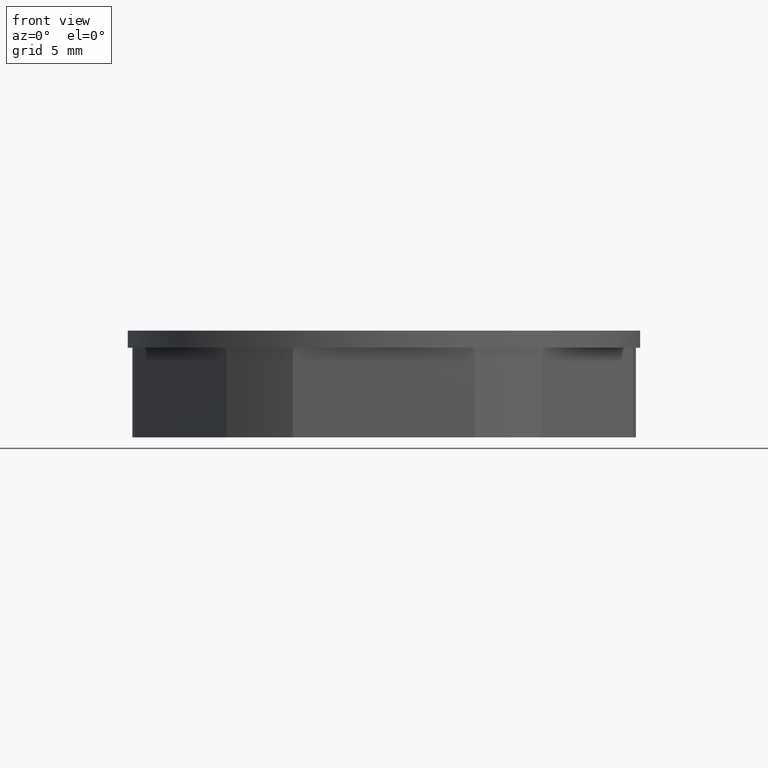
[diagram: clean part render]
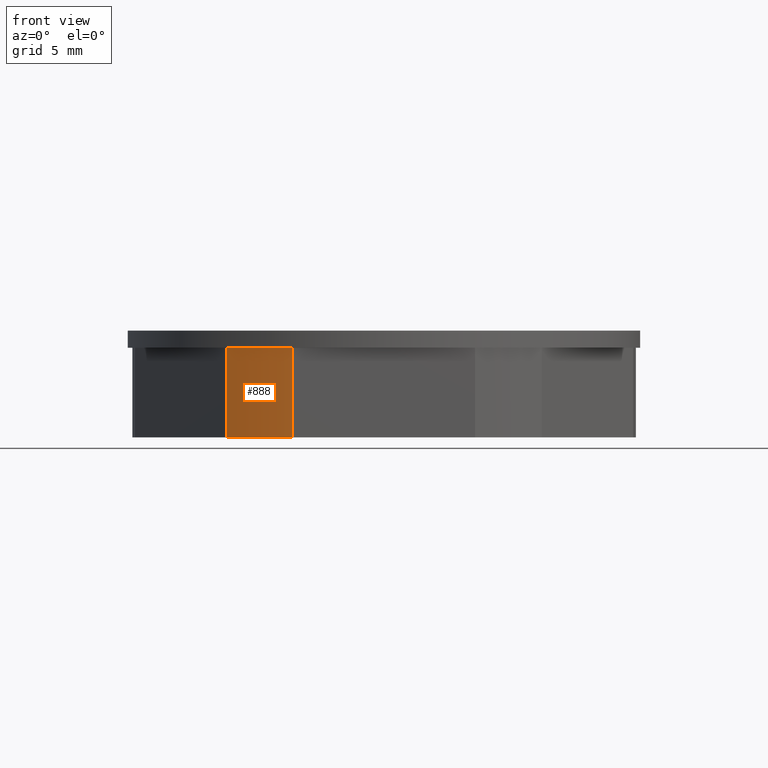
[diagram: same view with one face highlighted and labeled with its STEP entity id]
A machine part, front view. The second image highlights one B-rep face of the part: STEP entity #888.
In plain terms, the highlighted cylindrical surface (partial cylindrical patch) has radius 11.8 mm, axis along (0, 0, 1).
Its self-contained STEP definition (entity closure, byte-faithful):
#259 = LINE ( 'NONE', #285, #1350 ) ;
#279 = DIRECTION ( 'NONE',  ( -0.0000000000000000000, -0.0000000000000000000, -1.000000000000000000 ) ) ;
#285 = CARTESIAN_POINT ( 'NONE',  ( -7.390863791222585600, -9.198648401781373000, 0.0000000000000000000 ) ) ;
#326 = DIRECTION ( 'NONE',  ( -0.0000000000000000000, -0.0000000000000000000, -1.000000000000000000 ) ) ;
#328 = CARTESIAN_POINT ( 'NONE',  ( 0.0000000000000000000, 0.0000000000000000000, 4.200000000000000200 ) ) ;
#329 = DIRECTION ( 'NONE',  ( 1.000000000000000000, -8.881784197001252300E-016, 0.0000000000000000000 ) ) ;
#450 = CARTESIAN_POINT ( 'NONE',  ( 0.0000000000000000000, 0.0000000000000000000, 0.0000000000000000000 ) ) ;
#454 = LINE ( 'NONE', #456, #1274 ) ;
#456 = CARTESIAN_POINT ( 'NONE',  ( -4.270831300812481000, -11.00000000000002000, 0.0000000000000000000 ) ) ;
#464 = DIRECTION ( 'NONE',  ( 1.000000000000000000, 0.0000000000000000000, 0.0000000000000000000 ) ) ;
#465 = DIRECTION ( 'NONE',  ( 0.0000000000000000000, 0.0000000000000000000, 1.000000000000000000 ) ) ;
#473 = DIRECTION ( 'NONE',  ( 0.0000000000000000000, 0.0000000000000000000, 1.000000000000000000 ) ) ;
#482 = EDGE_LOOP ( 'NONE', ( #554, #606, #580, #586 ) ) ;
#498 = VERTEX_POINT ( 'NONE', #558 ) ;
#508 = VERTEX_POINT ( 'NONE', #723 ) ;
#527 = VERTEX_POINT ( 'NONE', #728 ) ;
#549 = VERTEX_POINT ( 'NONE', #742 ) ;
#554 = ORIENTED_EDGE ( 'NONE', *, *, #829, .T. ) ;
#558 = CARTESIAN_POINT ( 'NONE',  ( -7.390863791222583000, -9.198648401781374800, 0.0000000000000000000 ) ) ;
#580 = ORIENTED_EDGE ( 'NONE', *, *, #874, .T. ) ;
#586 = ORIENTED_EDGE ( 'NONE', *, *, #858, .T. ) ;
#606 = ORIENTED_EDGE ( 'NONE', *, *, #876, .T. ) ;
#723 = CARTESIAN_POINT ( 'NONE',  ( -4.270831300812477400, -11.00000000000002100, 0.0000000000000000000 ) ) ;
#728 = CARTESIAN_POINT ( 'NONE',  ( -7.390863791222581200, -9.198648401781376500, 4.200000000000000200 ) ) ;
#742 = CARTESIAN_POINT ( 'NONE',  ( -4.270831300812479200, -11.00000000000002000, 4.200000000000000200 ) ) ;
#829 = EDGE_CURVE ( 'NONE', #527, #498, #259, .T. ) ;
#858 = EDGE_CURVE ( 'NONE', #549, #527, #1246, .T. ) ;
#874 = EDGE_CURVE ( 'NONE', #508, #549, #454, .T. ) ;
#876 = EDGE_CURVE ( 'NONE', #498, #508, #1275, .T. ) ;
#888 = ADVANCED_FACE ( 'NONE', ( #1072 ), #1077, .T. ) ;
#1072 = FACE_OUTER_BOUND ( 'NONE', #482, .T. ) ;
#1075 = CARTESIAN_POINT ( 'NONE',  ( 0.0000000000000000000, 0.0000000000000000000, 0.0000000000000000000 ) ) ;
#1077 = CYLINDRICAL_SURFACE ( 'NONE', #1270, 11.80000000000000200 ) ;
#1084 = DIRECTION ( 'NONE',  ( 1.000000000000000000, 0.0000000000000000000, 0.0000000000000000000 ) ) ;
#1088 = DIRECTION ( 'NONE',  ( 0.0000000000000000000, 0.0000000000000000000, 1.000000000000000000 ) ) ;
#1245 = AXIS2_PLACEMENT_3D ( 'NONE', #328, #326, #329 ) ;
#1246 = CIRCLE ( 'NONE', #1245, 11.80000000000000200 ) ;
#1270 = AXIS2_PLACEMENT_3D ( 'NONE', #1075, #1088, #1084 ) ;
#1271 = AXIS2_PLACEMENT_3D ( 'NONE', #450, #473, #464 ) ;
#1274 = VECTOR ( 'NONE', #465, 1000.000000000000000 ) ;
#1275 = CIRCLE ( 'NONE', #1271, 11.80000000000000200 ) ;
#1350 = VECTOR ( 'NONE', #279, 1000.000000000000000 ) ;